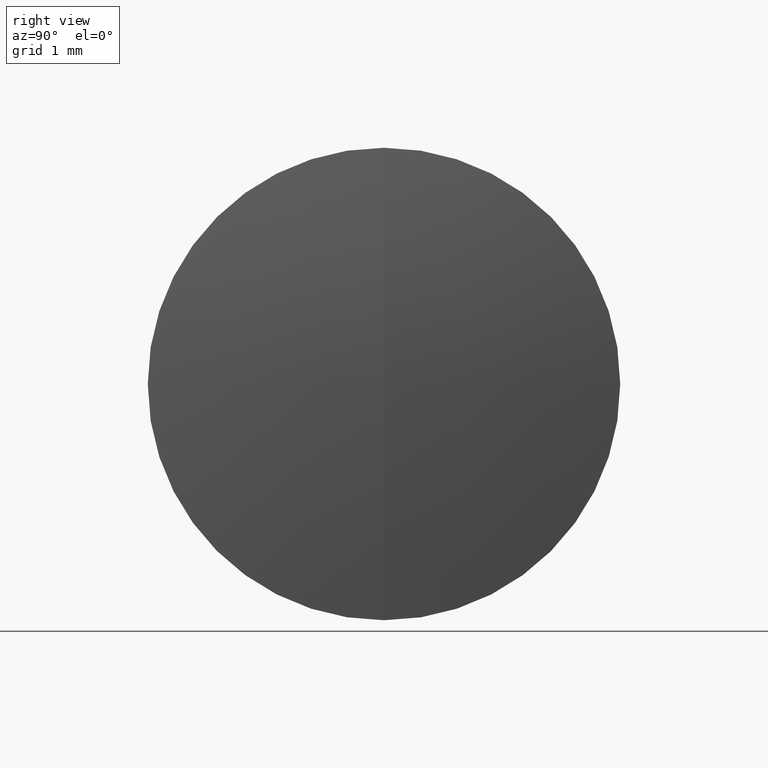
[diagram: clean part render]
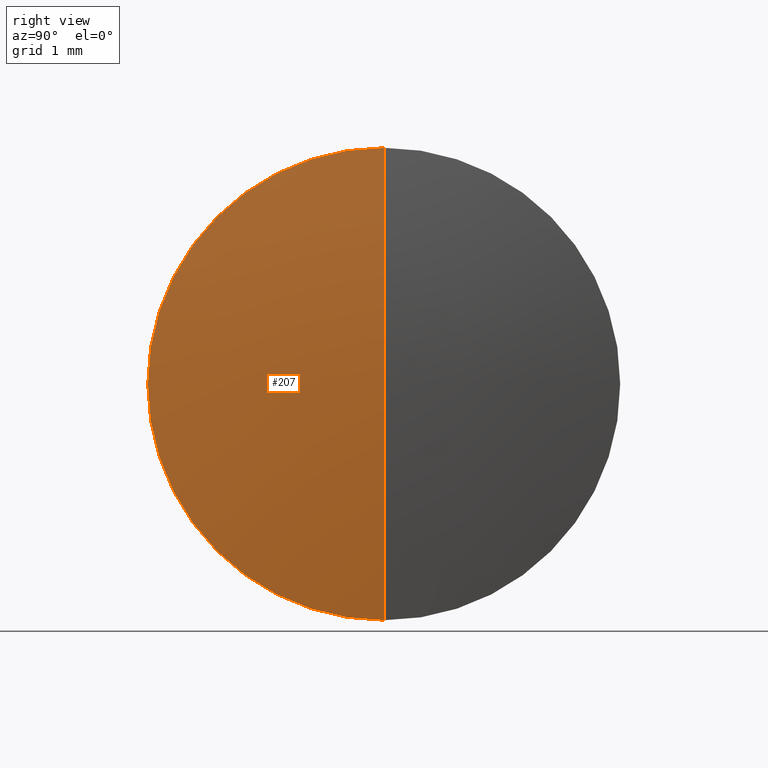
[diagram: same view with one face highlighted and labeled with its STEP entity id]
A machine part, right view. The second image highlights one B-rep face of the part: STEP entity #207.
In plain terms, the highlighted spherical surface has radius 21.7 mm.
Its self-contained STEP definition (entity closure, byte-faithful):
#11 = DIRECTION ( 'NONE',  ( 0.0000000000000000000, 0.0000000000000000000, 1.000000000000000000 ) ) ;
#23 = VERTEX_POINT ( 'NONE', #201 ) ;
#25 = DIRECTION ( 'NONE',  ( 0.0000000000000000000, -1.224646799147353500E-016, 1.000000000000000000 ) ) ;
#26 = CARTESIAN_POINT ( 'NONE',  ( 2.813910375090960900, 3.888253587292846100E-016, -3.174999999999998000 ) ) ;
#35 = ORIENTED_EDGE ( 'NONE', *, *, #124, .F. ) ;
#39 = CARTESIAN_POINT ( 'NONE',  ( -18.65256057380979400, 0.0000000000000000000, 0.0000000000000000000 ) ) ;
#60 = DIRECTION ( 'NONE',  ( 0.0000000000000000000, 1.000000000000000000, 0.0000000000000000000 ) ) ;
#61 = DIRECTION ( 'NONE',  ( 0.0000000000000000000, 0.0000000000000000000, -1.000000000000000000 ) ) ;
#62 = VERTEX_POINT ( 'NONE', #259 ) ;
#66 = AXIS2_PLACEMENT_3D ( 'NONE', #265, #60, #11 ) ;
#80 = DIRECTION ( 'NONE',  ( -1.000000000000000000, -0.0000000000000000000, -0.0000000000000000000 ) ) ;
#97 = CIRCLE ( 'NONE', #147, 3.174999999999998000 ) ;
#106 = EDGE_CURVE ( 'NONE', #138, #23, #97, .T. ) ;
#124 = EDGE_CURVE ( 'NONE', #62, #138, #175, .T. ) ;
#125 = ORIENTED_EDGE ( 'NONE', *, *, #156, .T. ) ;
#138 = VERTEX_POINT ( 'NONE', #26 ) ;
#147 = AXIS2_PLACEMENT_3D ( 'NONE', #285, #80, #249 ) ;
#156 = EDGE_CURVE ( 'NONE', #62, #23, #304, .T. ) ;
#175 = CIRCLE ( 'NONE', #186, 21.69999999999999900 ) ;
#186 = AXIS2_PLACEMENT_3D ( 'NONE', #247, #215, #25 ) ;
#187 = EDGE_LOOP ( 'NONE', ( #35, #125, #214 ) ) ;
#201 = CARTESIAN_POINT ( 'NONE',  ( 2.813910375090960900, 0.0000000000000000000, 3.174999999999998000 ) ) ;
#203 = SPHERICAL_SURFACE ( 'NONE', #66, 21.69999999999999900 ) ;
#207 = ADVANCED_FACE ( 'NONE', ( #282 ), #203, .T. ) ;
#214 = ORIENTED_EDGE ( 'NONE', *, *, #106, .F. ) ;
#215 = DIRECTION ( 'NONE',  ( -0.0000000000000000000, 1.000000000000000000, 1.224646799147353200E-016 ) ) ;
#228 = DIRECTION ( 'NONE',  ( 0.0000000000000000000, -1.000000000000000000, 0.0000000000000000000 ) ) ;
#247 = CARTESIAN_POINT ( 'NONE',  ( -18.65256057380979400, 0.0000000000000000000, 0.0000000000000000000 ) ) ;
#249 = DIRECTION ( 'NONE',  ( 0.0000000000000000000, 0.0000000000000000000, 1.000000000000000000 ) ) ;
#259 = CARTESIAN_POINT ( 'NONE',  ( 3.047439426190207400, 0.0000000000000000000, 1.328741777074878400E-015 ) ) ;
#265 = CARTESIAN_POINT ( 'NONE',  ( -18.65256057380979400, 0.0000000000000000000, 0.0000000000000000000 ) ) ;
#282 = FACE_OUTER_BOUND ( 'NONE', #187, .T. ) ;
#285 = CARTESIAN_POINT ( 'NONE',  ( 2.813910375090960900, 0.0000000000000000000, 0.0000000000000000000 ) ) ;
#304 = CIRCLE ( 'NONE', #321, 21.69999999999999900 ) ;
#321 = AXIS2_PLACEMENT_3D ( 'NONE', #39, #228, #61 ) ;